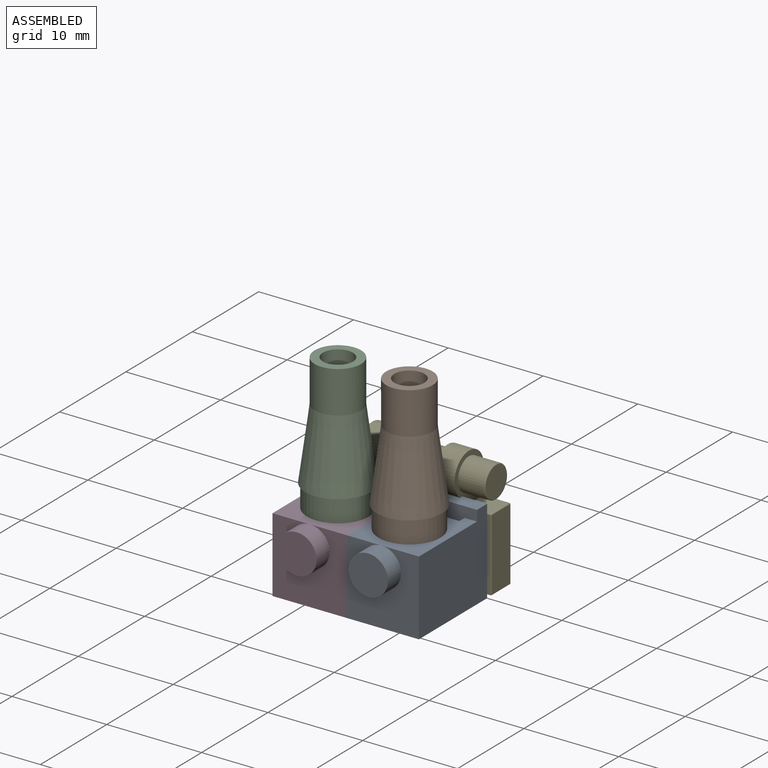
[diagram: assembled view]
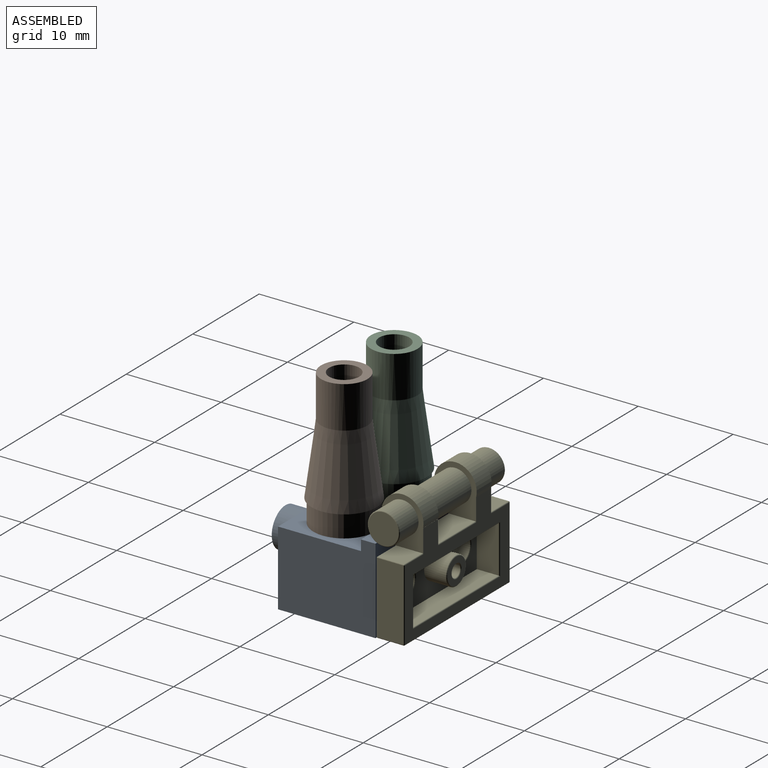
[diagram: assembled view, second angle]
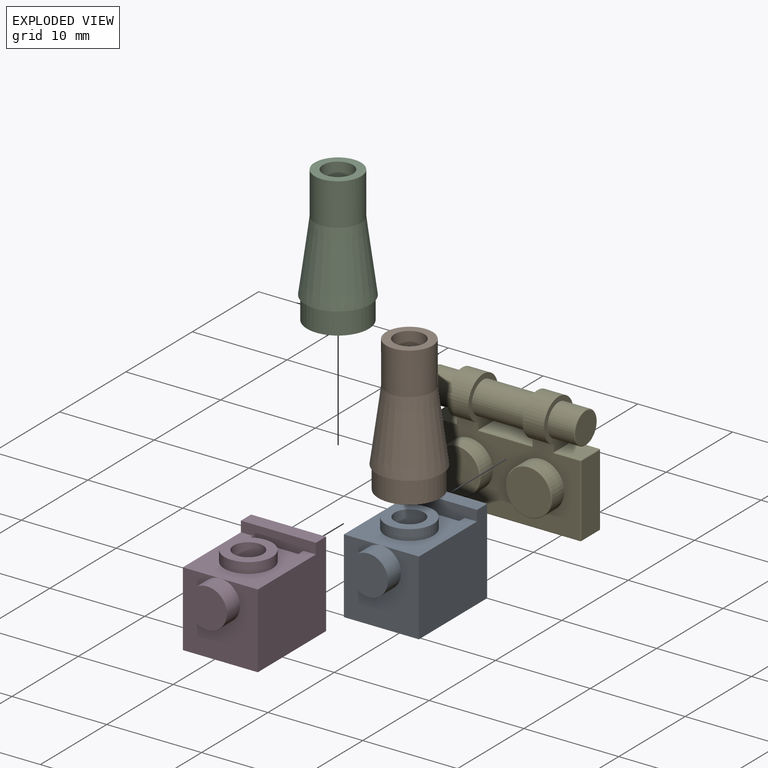
[diagram: exploded view]
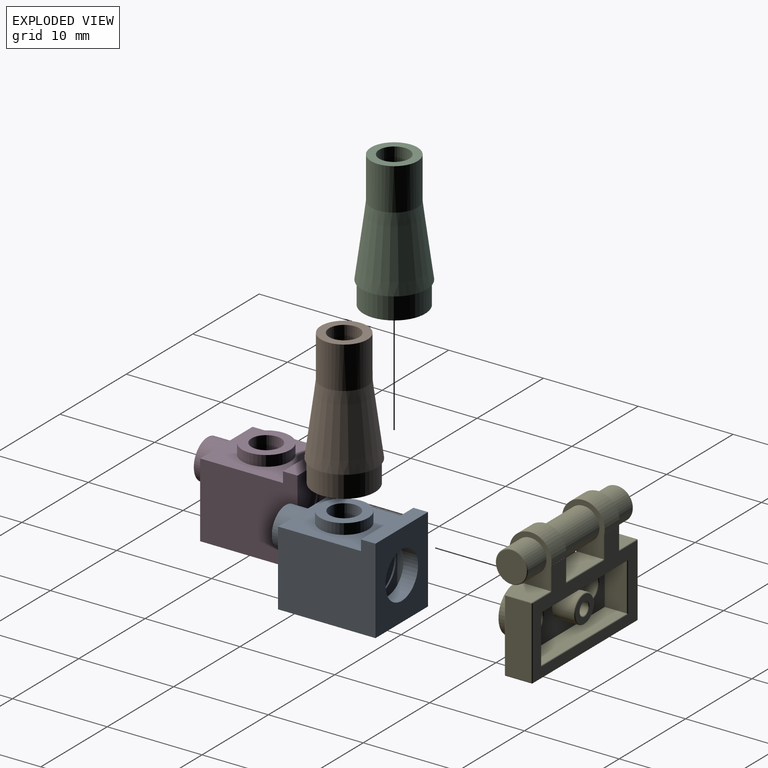
[diagram: exploded view, second angle]
ASSEMBLY  parts=5 mates=4
PART A: 25 faces, bbox 7.9x9x12.3 mm
  f0: plane 10.28x7.91mm, normal (0,-1,0), area 54.3mm2, adj f6,f7,f8,f10,f18,f19,f20,f21
  f1: cylinder r=1.55mm len=3.1mm, axis (0,1,0), area 29.6mm2, adj f13,f17
  f2: plane 6.89x0.8mm, normal (1,0,0), area 5.5mm2, adj f3,f5,f9,f16
  f3: plane 6.89x5.31mm, normal (0,0,-1), area 17.6mm2, adj f2,f4,f5,f16,f23
  f4: plane 6.89x0.8mm, normal (-1,0,0), area 5.5mm2, adj f3,f5,f9,f16
  f5: plane 8.75x7.91mm, normal (0,1,0), area 44.9mm2, adj f2,f3,f4,f6,f7,f8,f9,f12
  f6: plane 10.28x9mm, normal (-1,0,0), area 82.8mm2, adj f0,f5,f8,f9,f10,f11
  f7: plane 10.28x9mm, normal (1,0,0), area 82.8mm2, adj f0,f5,f8,f9,f10,f11
  f8: plane 7.91x7.89mm, normal (0,0,1), area 48.9mm2, adj f0,f5,f6,f7,f14
  f9: plane 8x7.91mm, normal (0,0,1), area 26.4mm2, adj f2,f4,f5,f6,f7,f11,f16,f22
  f10: plane 9x7.91mm, normal (0,0,-1), area 52.2mm2, adj f0,f6,f7,f11,f22
  f11: plane 7.91x1.53mm, normal (0,1,0), area 12.1mm2, adj f6,f7,f9,f10
  f12: cylinder r=2.53mm len=5.06mm, axis (0,-1,0), area 17.8mm2, adj f5,f13
  f13: plane 5.06x5.06mm, normal (0,1,0), area 12.6mm2, adj f1,f12
  f14: cylinder r=2.08mm len=4.15mm, axis (0,0,-1), area 25.8mm2, adj f8,f15
  f15: plane 4.15x4.15mm, normal (0,0,1), area 13.5mm2, adj f14
  f16: plane 5.31x0.8mm, normal (0,1,0), area 4.2mm2, adj f2,f3,f4,f9
  f17: plane 5.51x4.9mm, normal (0,-1,0), area 19.4mm2, adj f1,f18,f19,f20,f21
  f18: plane 5.97x5.51mm, normal (1,0,0), area 32.9mm2, adj f0,f17,f19,f21
  f19: plane 5.97x4.9mm, normal (0,0,1), area 29.2mm2, adj f0,f17,f18,f20
  f20: plane 5.97x5.51mm, normal (-1,0,0), area 32.9mm2, adj f0,f17,f19,f21
  f21: plane 5.97x4.9mm, normal (0,0,-1), area 29.2mm2, adj f0,f17,f18,f20
  f22: cylinder r=2.46mm len=4.92mm, axis (0,0,-1), area 23.6mm2, adj f9,f10
  f23: cylinder r=2.46mm len=4.92mm, axis (0,0,-1), area 2.6mm2, adj f3,f24
  f24: plane 4.92x4.92mm, normal (0,0,-1), area 19mm2, adj f23
PART B: 9 faces, bbox 6.9x14.3x6.9 mm
  f0: cone r=2.44mm half-angle=7.7deg, axis (0,1,0), area 140.5mm2, adj f1,f6
  f1: plane 6.91x6.91mm, normal (0,1,0), area 4.1mm2, adj f0,f2
  f2: cylinder r=3.26mm len=6.52mm, axis (0,-1,0), area 48.7mm2, adj f1,f3
  f3: plane 6.52x6.52mm, normal (0,1,0), area 14.8mm2, adj f2,f4
  f4: cylinder r=2.44mm len=4.87mm, axis (0,1,0), area 73.4mm2, adj f3,f5
  f5: plane 4.87x4.87mm, normal (0,1,0), area 10.7mm2, adj f4,f8
  f6: cylinder r=2.45mm len=4.9mm, axis (0,1,0), area 68.2mm2, adj f0,f7
  f7: plane 4.9x4.9mm, normal (0,-1,0), area 10.9mm2, adj f6,f8
  f8: cylinder r=1.59mm len=9.53mm, axis (0,-1,0), area 95.2mm2, adj f5,f7
PART C: same geometry as B
PART D: same geometry as A
PART E: 73 faces, bbox 15.9x4.9x12.8 mm
  f0: plane 5.16x4.45mm, normal (-1,0,0), area 9.4mm2, adj f1,f10,f11,f12,f13,f17,f44,f58
  f1: plane 5.72x2.74mm, normal (0,0,1), area 15.7mm2, adj f0,f2,f44,f58
  f2: plane 5.18x4.5mm, normal (1,0,0), area 9.6mm2, adj f1,f11,f12,f14,f17,f44,f58
  f3: plane 5.18x4.5mm, normal (-1,0,0), area 9.6mm2, adj f4,f11,f12,f14,f16,f39,f52
  f4: plane 2.76x2.74mm, normal (0,0,1), area 7.6mm2, adj f3,f39,f52,f54
  f5: plane 7.55x2.74mm, normal (-1,0,0), area 20.7mm2, adj f40,f49,f51,f54
  f6: plane 15.74x2.74mm, normal (0,0,-1), area 43.1mm2, adj f41,f45,f46,f49
  f7: plane 7.55x2.74mm, normal (1,0,0), area 20.7mm2, adj f42,f46,f60,f62
  f8: plane 2.76x2.74mm, normal (0,0,1), area 7.6mm2, adj f9,f43,f57,f60
  f9: plane 5.16x4.45mm, normal (1,0,0), area 9.4mm2, adj f8,f10,f11,f12,f13,f18,f43,f57
  f10: plane 2.25x0.01mm, normal (0,0,1), area 0mm2, adj f0,f9,f12,f13
  f11: plane 15.74x8.39mm, normal (0,-1,0), area 84.8mm2, adj f0,f2,f3,f9,f13,f14,f20,f22
  f12: plane 15.74x10.07mm, normal (0,1,0), area 61.4mm2, adj f0,f2,f3,f9,f10,f14,f45,f51
  f13: cylinder r=2.23mm len=4.45mm, axis (1,0,0), area 22.8mm2, adj f0,f9,f10,f11
  f14: cylinder r=2.25mm len=4.5mm, axis (-1,0,0), area 23.3mm2, adj f2,f3,f11,f12
  f15: plane 3.19x3.19mm, normal (-1,0,0), area 8mm2, adj f65
  f16: cylinder r=1.69mm len=3.39mm, axis (1,0,0), area 29.4mm2, adj f3,f65
  f17: cylinder r=1.69mm len=5.72mm, axis (1,0,0), area 60.8mm2, adj f0,f2
  f18: cylinder r=1.69mm len=3.39mm, axis (-1,0,0), area 29.4mm2, adj f9,f64
  f19: plane 3.19x3.19mm, normal (1,0,0), area 8mm2, adj f64
  f20: cylinder r=2.45mm len=4.9mm, axis (0,1,0), area 27.7mm2, adj f11,f38
  f21: plane 4.7x4.7mm, normal (0,-1,0), area 17.3mm2, adj f38
  f22: cylinder r=2.45mm len=4.9mm, axis (0,1,0), area 27.7mm2, adj f11,f37
  f23: plane 4.7x4.7mm, normal (0,-1,0), area 17.3mm2, adj f37
  f24: plane 5.02x2.3mm, normal (-1,0,0), area 11.5mm2, adj f25,f27,f28,f70
  f25: plane 12.94x2.3mm, normal (0,0,1), area 29.8mm2, adj f24,f26,f28,f71
  f26: plane 5.02x2.3mm, normal (1,0,0), area 11.5mm2, adj f25,f27,f28,f72
  f27: plane 12.94x2.3mm, normal (0,0,-1), area 29.8mm2, adj f24,f26,f28,f56
  f28: plane 12.94x5.02mm, normal (0,1,0), area 45.5mm2, adj f24,f25,f26,f27,f33,f68,f69
  f29: cylinder r=1.32mm len=2.64mm, axis (0,1,0), area 14.3mm2, adj f30,f68
  f30: plane 2.64x2.64mm, normal (0,1,0), area 5.5mm2, adj f29
  f31: cylinder r=1.32mm len=2.64mm, axis (0,1,0), area 14.3mm2, adj f32,f69
  f32: plane 2.64x2.64mm, normal (0,1,0), area 5.5mm2, adj f31
  f33: cylinder r=1.47mm len=2.95mm, axis (0,-1,0), area 21.1mm2, adj f28,f67
  f34: plane 2.75x2.75mm, normal (0,1,0), area 4.1mm2, adj f66,f67
  f35: cylinder r=0.67mm len=2.4mm, axis (0,1,0), area 10.1mm2, adj f36,f66
  f36: plane 1.34x1.34mm, normal (0,1,0), area 1.4mm2, adj f35
  f37: torus R=2.35mm, axis (0,-1,0), area 2.4mm2, adj f22,f23
  f38: torus R=2.35mm, axis (0,-1,0), area 2.4mm2, adj f20,f21
  f39: cylinder r=0.1mm len=2.76mm, axis (1,0,0), area 0.4mm2, adj f3,f4,f11,f55
  f40: cylinder r=0.1mm len=7.55mm, axis (0,0,1), area 1.2mm2, adj f5,f11,f48,f55
  f41: cylinder r=0.1mm len=15.74mm, axis (-1,0,0), area 2.5mm2, adj f6,f11,f47,f48
  f42: cylinder r=0.1mm len=7.55mm, axis (0,0,-1), area 1.2mm2, adj f7,f11,f47,f59
  f43: cylinder r=0.1mm len=2.76mm, axis (1,0,0), area 0.4mm2, adj f8,f9,f11,f59
  f44: cylinder r=0.1mm len=5.72mm, axis (1,0,0), area 0.9mm2, adj f0,f1,f2,f11
  f45: cylinder r=0.1mm len=15.74mm, axis (1,0,0), area 2.5mm2, adj f6,f12,f50,f63
  f46: cylinder r=0.1mm len=2.74mm, axis (0,1,0), area 0.4mm2, adj f6,f7,f47,f63
  f47: sphere r=0.1mm, area 0mm2, adj f41,f42,f46
  f48: sphere r=0.1mm, area 0mm2, adj f40,f41,f49
  f49: cylinder r=0.1mm len=2.74mm, axis (0,-1,0), area 0.4mm2, adj f5,f6,f48,f50
  f50: sphere r=0.1mm, area 0mm2, adj f45,f49,f51
  f51: cylinder r=0.1mm len=7.55mm, axis (0,0,-1), area 1.2mm2, adj f5,f12,f50,f53
  f52: cylinder r=0.1mm len=2.76mm, axis (-1,0,0), area 0.4mm2, adj f3,f4,f12,f53
  f53: sphere r=0.1mm, area 0mm2, adj f51,f52,f54
  f54: cylinder r=0.1mm len=2.74mm, axis (0,1,0), area 0.4mm2, adj f4,f5,f53,f55
  f55: sphere r=0.1mm, area 0mm2, adj f39,f40,f54
  f56: cylinder r=0.1mm len=13.14mm, axis (1,0,0), area 2mm2, adj f12,f27,f70,f72
  f57: cylinder r=0.1mm len=2.76mm, axis (-1,0,0), area 0.4mm2, adj f8,f9,f12,f61
  f58: cylinder r=0.1mm len=5.72mm, axis (-1,0,0), area 0.9mm2, adj f0,f1,f2,f12
  f59: sphere r=0.1mm, area 0mm2, adj f42,f43,f60
  f60: cylinder r=0.1mm len=2.74mm, axis (0,1,0), area 0.4mm2, adj f7,f8,f59,f61
  f61: sphere r=0.1mm, area 0mm2, adj f57,f60,f62
  f62: cylinder r=0.1mm len=7.55mm, axis (0,0,1), area 1.2mm2, adj f7,f12,f61,f63
  f63: sphere r=0.1mm, area 0mm2, adj f45,f46,f62
  f64: torus R=1.59mm, axis (-1,0,0), area 1.6mm2, adj f18,f19
  f65: torus R=1.59mm, axis (1,0,0), area 1.6mm2, adj f15,f16
  f66: torus R=0.77mm, axis (0,1,0), area 0.7mm2, adj f34,f35
  f67: torus R=1.38mm, axis (0,1,0), area 1.4mm2, adj f33,f34
  f68: torus R=1.42mm, axis (0,1,0), area 1.3mm2, adj f28,f29
  f69: torus R=1.42mm, axis (0,1,0), area 1.3mm2, adj f28,f31
  f70: cylinder r=0.1mm len=5.22mm, axis (0,0,-1), area 0.8mm2, adj f12,f24,f56,f71
  f71: cylinder r=0.1mm len=13.14mm, axis (-1,0,0), area 2mm2, adj f12,f25,f70,f72
  f72: cylinder r=0.1mm len=5.22mm, axis (0,0,1), area 0.8mm2, adj f12,f26,f56,f71
PLACE A rot(axis=(1,0,0),90deg) t=(-15.22,-0.82,-2.47)mm
PLACE B rot(axis=(-1,0,0),90deg) t=(-11.26,-6.88,7.43)mm
PLACE C rot(axis=(-1,0,0),90deg) t=(-18.8,-6.88,7.43)mm
PLACE D rot(axis=(1,0,0),90deg) t=(-22.76,-0.82,-2.47)mm
PLACE E t=(-23,2.39,-10.18)mm
MATE revolute D.f1 <-> C.f0  axis (0,0,1) through (-18.8,-6.88,-2.47)mm
MATE revolute A.f1 <-> B.f0  axis (0,0,-1) through (-11.26,-6.88,-2.47)mm
MATE revolute D.f22 <-> E.f20  axis (0,-1,0) through (-18.8,-2.35,-5.86)mm
MATE revolute A.f22 <-> E.f22  axis (0,-1,0) through (-11.26,-2.35,-5.86)mm
